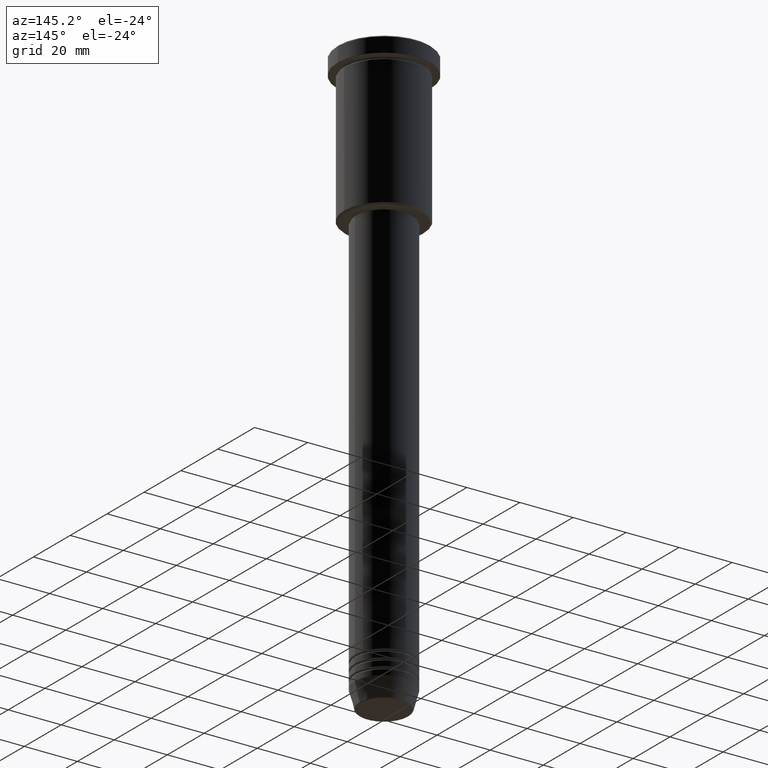
[diagram: clean part render]
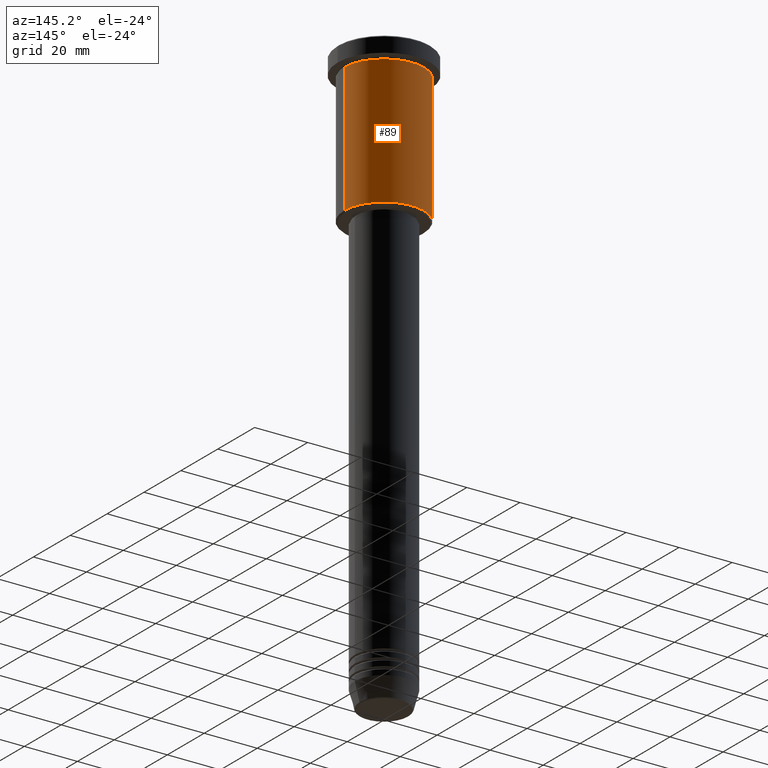
[diagram: same view with one face highlighted and labeled with its STEP entity id]
A machine part, auxiliary view. The second image highlights one B-rep face of the part: STEP entity #89.
In plain terms, the highlighted cylindrical surface (partial cylindrical patch) has radius 15 mm, axis along (-0, -0, 1).
Its self-contained STEP definition (entity closure, byte-faithful):
#9 = ORIENTED_EDGE ( 'NONE', *, *, #230, .T. ) ;
#33 = CARTESIAN_POINT ( 'NONE',  ( 0.000000000000000000, 0.000000000000000000, 0.000000000000000000 ) ) ;
#53 = LINE ( 'NONE', #977, #150 ) ;
#62 = DIRECTION ( 'NONE',  ( -0.000000000000000000, -0.000000000000000000, 1.000000000000000000 ) ) ;
#89 = ADVANCED_FACE ( 'NONE', ( #882 ), #680, .T. ) ;
#104 = DIRECTION ( 'NONE',  ( -0.000000000000000000, -0.000000000000000000, 1.000000000000000000 ) ) ;
#107 = AXIS2_PLACEMENT_3D ( 'NONE', #33, #331, #1032 ) ;
#116 = VERTEX_POINT ( 'NONE', #241 ) ;
#150 = VECTOR ( 'NONE', #62, 1000.000000000000000 ) ;
#187 = ORIENTED_EDGE ( 'NONE', *, *, #759, .T. ) ;
#230 = EDGE_CURVE ( 'NONE', #116, #543, #1003, .T. ) ;
#241 = CARTESIAN_POINT ( 'NONE',  ( 15.00000000000000000, 0.000000000000000000, -55.50000000000000711 ) ) ;
#296 = EDGE_LOOP ( 'NONE', ( #9, #187, #811, #949 ) ) ;
#331 = DIRECTION ( 'NONE',  ( -0.000000000000000000, -0.000000000000000000, 1.000000000000000000 ) ) ;
#344 = DIRECTION ( 'NONE',  ( -0.000000000000000000, -0.000000000000000000, 1.000000000000000000 ) ) ;
#395 = EDGE_CURVE ( 'NONE', #1066, #1029, #1095, .T. ) ;
#431 = EDGE_CURVE ( 'NONE', #116, #1066, #547, .T. ) ;
#477 = VECTOR ( 'NONE', #1107, 1000.000000000000000 ) ;
#538 = CARTESIAN_POINT ( 'NONE',  ( 0.000000000000000000, 0.000000000000000000, -55.50000000000000711 ) ) ;
#543 = VERTEX_POINT ( 'NONE', #672 ) ;
#547 = LINE ( 'NONE', #572, #477 ) ;
#572 = CARTESIAN_POINT ( 'NONE',  ( 15.00000000000000000, 0.000000000000000000, 0.000000000000000000 ) ) ;
#589 = CARTESIAN_POINT ( 'NONE',  ( -15.00000000000000000, 1.836970198721029589E-15, -6.999999999999995559 ) ) ;
#672 = CARTESIAN_POINT ( 'NONE',  ( -15.00000000000000000, 1.836970198721029589E-15, -55.50000000000000711 ) ) ;
#680 = CYLINDRICAL_SURFACE ( 'NONE', #107, 15.00000000000000000 ) ;
#682 = CARTESIAN_POINT ( 'NONE',  ( 15.00000000000000000, 0.000000000000000000, -6.999999999999995559 ) ) ;
#759 = EDGE_CURVE ( 'NONE', #543, #1029, #53, .T. ) ;
#811 = ORIENTED_EDGE ( 'NONE', *, *, #395, .F. ) ;
#882 = FACE_OUTER_BOUND ( 'NONE', #296, .T. ) ;
#932 = CARTESIAN_POINT ( 'NONE',  ( 0.000000000000000000, 0.000000000000000000, -6.999999999999995559 ) ) ;
#949 = ORIENTED_EDGE ( 'NONE', *, *, #431, .F. ) ;
#977 = CARTESIAN_POINT ( 'NONE',  ( -15.00000000000000000, 1.836970198721029589E-15, 0.000000000000000000 ) ) ;
#983 = DIRECTION ( 'NONE',  ( -1.000000000000000000, 0.000000000000000000, 0.000000000000000000 ) ) ;
#1003 = CIRCLE ( 'NONE', #1166, 15.00000000000000000 ) ;
#1020 = AXIS2_PLACEMENT_3D ( 'NONE', #932, #104, #1103 ) ;
#1029 = VERTEX_POINT ( 'NONE', #589 ) ;
#1032 = DIRECTION ( 'NONE',  ( 1.000000000000000000, 0.000000000000000000, 0.000000000000000000 ) ) ;
#1066 = VERTEX_POINT ( 'NONE', #682 ) ;
#1095 = CIRCLE ( 'NONE', #1020, 15.00000000000000000 ) ;
#1103 = DIRECTION ( 'NONE',  ( 1.000000000000000000, 0.000000000000000000, 0.000000000000000000 ) ) ;
#1107 = DIRECTION ( 'NONE',  ( -0.000000000000000000, -0.000000000000000000, 1.000000000000000000 ) ) ;
#1166 = AXIS2_PLACEMENT_3D ( 'NONE', #538, #344, #983 ) ;